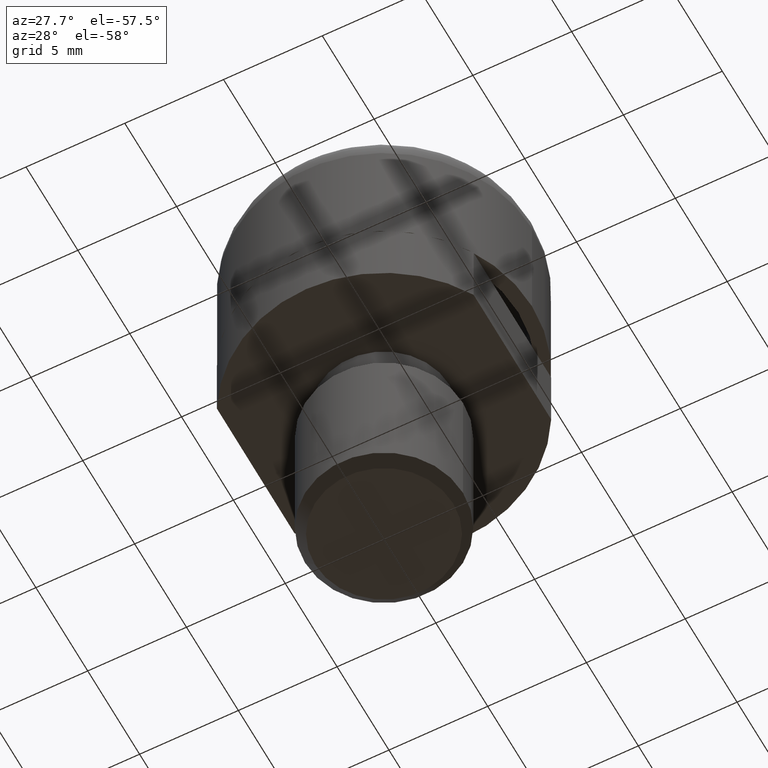
[diagram: clean part render]
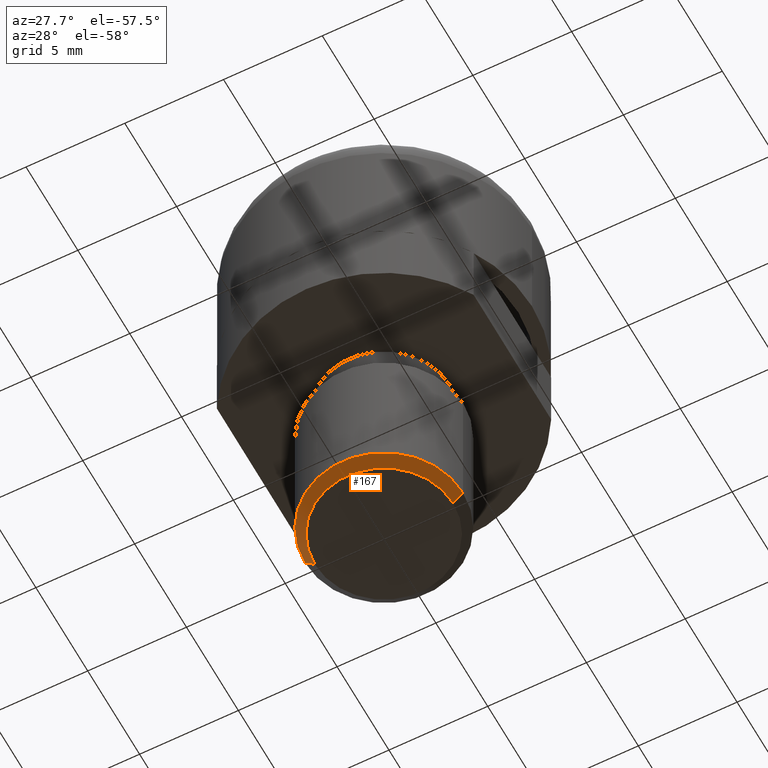
[diagram: same view with one face highlighted and labeled with its STEP entity id]
A machine part, auxiliary view. The second image highlights one B-rep face of the part: STEP entity #167.
In plain terms, the highlighted conical surface has half-angle 45 deg.
Its self-contained STEP definition (entity closure, byte-faithful):
#14 = CARTESIAN_POINT ( 'NONE',  ( 0.0000000000000000000, 0.0000000000000000000, -12.99999999999986100 ) ) ;
#30 = CARTESIAN_POINT ( 'NONE',  ( 3.500000000000000000, 0.0000000000000000000, -13.49999999999986100 ) ) ;
#81 = EDGE_LOOP ( 'NONE', ( #664, #812, #480, #139 ) ) ;
#84 = CARTESIAN_POINT ( 'NONE',  ( 0.0000000000000000000, 0.0000000000000000000, -13.49999999999986100 ) ) ;
#87 = DIRECTION ( 'NONE',  ( -1.000000000000000000, 0.0000000000000000000, 0.0000000000000000000 ) ) ;
#95 = DIRECTION ( 'NONE',  ( -1.000000000000000000, 0.0000000000000000000, 0.0000000000000000000 ) ) ;
#107 = AXIS2_PLACEMENT_3D ( 'NONE', #168, #612, #95 ) ;
#124 = VECTOR ( 'NONE', #479, 1000.000000000000000 ) ;
#139 = ORIENTED_EDGE ( 'NONE', *, *, #277, .T. ) ;
#163 = LINE ( 'NONE', #554, #124 ) ;
#167 = ADVANCED_FACE ( 'NONE', ( #419 ), #755, .T. ) ;
#168 = CARTESIAN_POINT ( 'NONE',  ( 0.0000000000000000000, 0.0000000000000000000, -13.49999999999986100 ) ) ;
#180 = CARTESIAN_POINT ( 'NONE',  ( 3.500000000000000000, 0.0000000000000000000, -13.49999999999986100 ) ) ;
#212 = AXIS2_PLACEMENT_3D ( 'NONE', #14, #534, #87 ) ;
#218 = VERTEX_POINT ( 'NONE', #589 ) ;
#229 = CARTESIAN_POINT ( 'NONE',  ( -4.000000000000000000, 4.898587196589412800E-016, -12.99999999999986100 ) ) ;
#242 = VERTEX_POINT ( 'NONE', #229 ) ;
#259 = DIRECTION ( 'NONE',  ( 0.7071067811865470200, 0.0000000000000000000, 0.7071067811865480200 ) ) ;
#277 = EDGE_CURVE ( 'NONE', #698, #242, #573, .T. ) ;
#336 = VECTOR ( 'NONE', #259, 1000.000000000000000 ) ;
#419 = FACE_OUTER_BOUND ( 'NONE', #81, .T. ) ;
#479 = DIRECTION ( 'NONE',  ( -0.7071067811865470200, 8.659560562354926700E-017, 0.7071067811865480200 ) ) ;
#480 = ORIENTED_EDGE ( 'NONE', *, *, #732, .T. ) ;
#525 = DIRECTION ( 'NONE',  ( 0.0000000000000000000, 0.0000000000000000000, 1.000000000000000000 ) ) ;
#534 = DIRECTION ( 'NONE',  ( 0.0000000000000000000, 0.0000000000000000000, -1.000000000000000000 ) ) ;
#543 = CARTESIAN_POINT ( 'NONE',  ( 4.000000000000000000, 0.0000000000000000000, -12.99999999999986100 ) ) ;
#554 = CARTESIAN_POINT ( 'NONE',  ( -3.500000000000000000, 4.286263797015736600E-016, -13.49999999999986100 ) ) ;
#570 = EDGE_CURVE ( 'NONE', #218, #242, #163, .T. ) ;
#573 = CIRCLE ( 'NONE', #212, 4.000000000000000000 ) ;
#589 = CARTESIAN_POINT ( 'NONE',  ( -3.500000000000000000, 4.592425496802574000E-016, -13.49999999999986100 ) ) ;
#600 = DIRECTION ( 'NONE',  ( 1.000000000000000000, 0.0000000000000000000, 0.0000000000000000000 ) ) ;
#612 = DIRECTION ( 'NONE',  ( 0.0000000000000000000, 0.0000000000000000000, -1.000000000000000000 ) ) ;
#664 = ORIENTED_EDGE ( 'NONE', *, *, #570, .F. ) ;
#686 = EDGE_CURVE ( 'NONE', #915, #218, #939, .T. ) ;
#698 = VERTEX_POINT ( 'NONE', #543 ) ;
#732 = EDGE_CURVE ( 'NONE', #915, #698, #919, .T. ) ;
#755 = CONICAL_SURFACE ( 'NONE', #858, 3.500000000000000000, 0.7853981633974476100 ) ;
#812 = ORIENTED_EDGE ( 'NONE', *, *, #686, .F. ) ;
#858 = AXIS2_PLACEMENT_3D ( 'NONE', #84, #525, #600 ) ;
#915 = VERTEX_POINT ( 'NONE', #180 ) ;
#919 = LINE ( 'NONE', #30, #336 ) ;
#939 = CIRCLE ( 'NONE', #107, 3.500000000000000000 ) ;